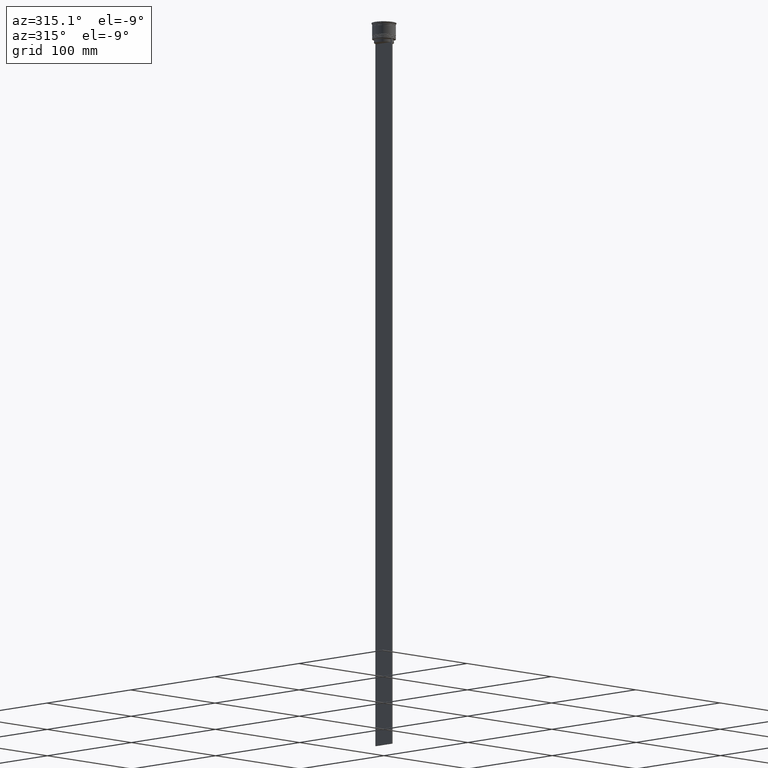
[diagram: clean part render]
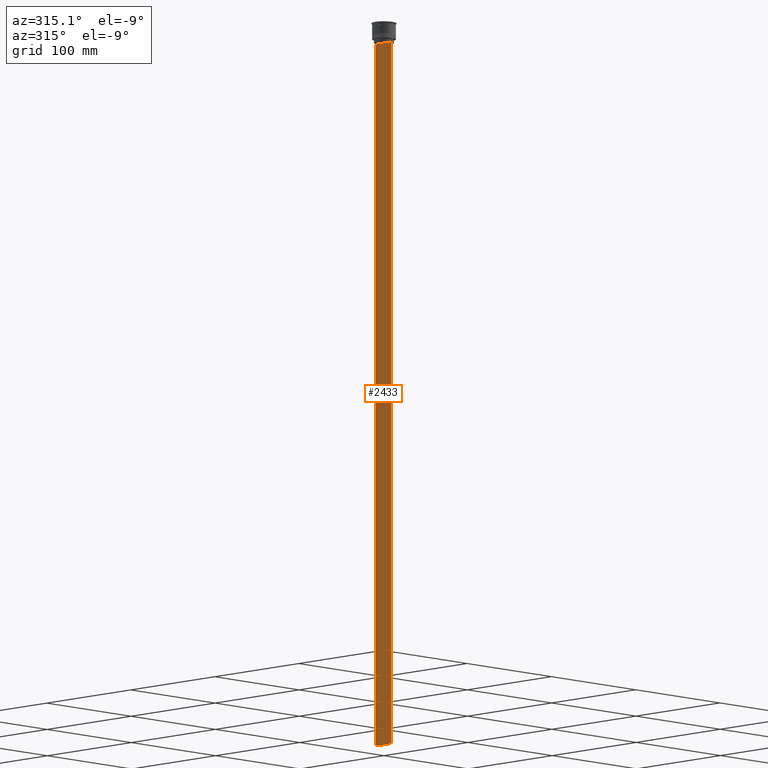
[diagram: same view with one face highlighted and labeled with its STEP entity id]
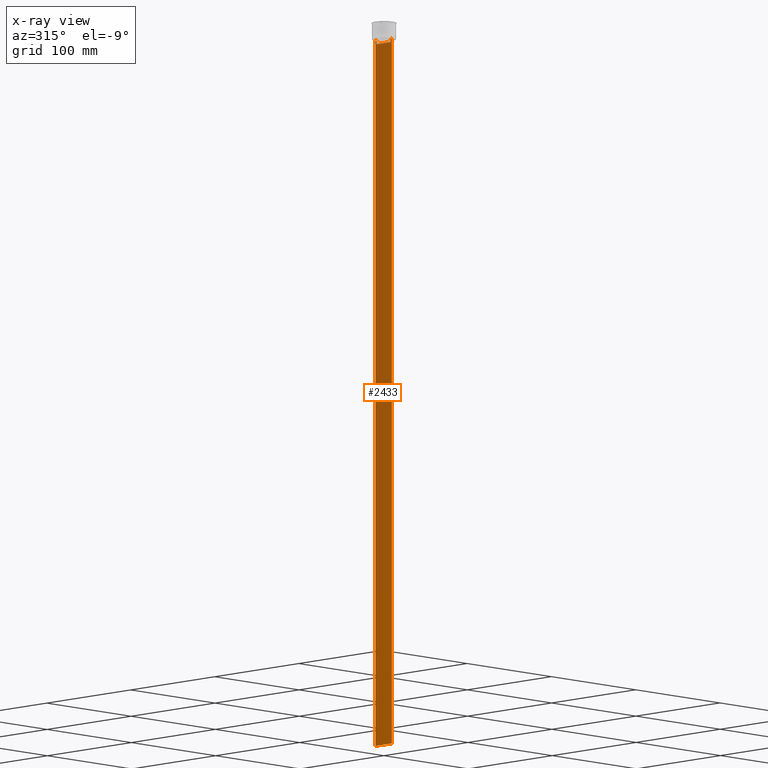
[diagram: x-ray of the same camera — body ghosted, the highlighted face saturated]
A machine part, auxiliary view. The second image highlights one B-rep face of the part: STEP entity #2433.
The next image is the same camera in x-ray: the body ghosted, the highlighted face saturated — about 0% of this face is hidden behind the body in this view.
In plain terms, the highlighted planar face has unit normal (-1, 0, 0).
Its self-contained STEP definition (entity closure, byte-faithful):
#21 = VERTEX_POINT ( 'NONE', #82 ) ;
#44 = EDGE_CURVE ( 'NONE', #1457, #1704, #2473, .T. ) ;
#74 = EDGE_CURVE ( 'NONE', #1005, #881, #1272, .T. ) ;
#82 = CARTESIAN_POINT ( 'NONE',  ( -0.5000000000000001110, -9.749999999999998224, -614.0000000000000000 ) ) ;
#126 = CARTESIAN_POINT ( 'NONE',  ( -0.5000000000000001110, 8.885943956609230199, -14.00000000000000178 ) ) ;
#156 = PLANE ( 'NONE',  #2300 ) ;
#179 = CARTESIAN_POINT ( 'NONE',  ( -0.5000000000000001110, -8.552060194457773434, -14.33334167772667023 ) ) ;
#190 = LINE ( 'NONE', #1823, #426 ) ;
#227 = DIRECTION ( 'NONE',  ( 0.000000000000000000, -1.000000000000000000, 0.000000000000000000 ) ) ;
#266 = DIRECTION ( 'NONE',  ( -0.000000000000000000, -0.000000000000000000, 1.000000000000000000 ) ) ;
#284 = CARTESIAN_POINT ( 'NONE',  ( -0.5000000000000001110, -9.749999999999998224, -14.00000000000000178 ) ) ;
#349 = B_SPLINE_CURVE_WITH_KNOTS ( 'NONE', 3,
 ( #1227, #179, #2377, #1414 ),
 .UNSPECIFIED., .F., .F.,
 ( 4, 4 ),
 ( 0.03898465126933130243, 0.03969388910599658260 ),
 .UNSPECIFIED. ) ;
#369 = ORIENTED_EDGE ( 'NONE', *, *, #1604, .F. ) ;
#423 = EDGE_CURVE ( 'NONE', #21, #989, #644, .T. ) ;
#426 = VECTOR ( 'NONE', #2171, 1000.000000000000000 ) ;
#462 = DIRECTION ( 'NONE',  ( 0.000000000000000000, -1.000000000000000000, 0.000000000000000000 ) ) ;
#472 = LINE ( 'NONE', #2066, #2471 ) ;
#473 = VECTOR ( 'NONE', #554, 1000.000000000000000 ) ;
#485 = ORIENTED_EDGE ( 'NONE', *, *, #2526, .F. ) ;
#489 = CARTESIAN_POINT ( 'NONE',  ( -0.5000000000000001110, -8.385105843100616241, 0.000000000000000000 ) ) ;
#534 = ORIENTED_EDGE ( 'NONE', *, *, #1361, .T. ) ;
#542 = DIRECTION ( 'NONE',  ( -1.000000000000000000, 0.000000000000000000, 0.000000000000000000 ) ) ;
#554 = DIRECTION ( 'NONE',  ( 0.000000000000000000, 0.000000000000000000, -1.000000000000000000 ) ) ;
#558 = CARTESIAN_POINT ( 'NONE',  ( -0.5000000000000001110, 8.552060201981381837, -14.33334167021640226 ) ) ;
#587 = CARTESIAN_POINT ( 'NONE',  ( -0.5000000000000001110, -9.749999999999998224, 5.525624189766635830 ) ) ;
#644 = LINE ( 'NONE', #1648, #719 ) ;
#672 = VECTOR ( 'NONE', #266, 1000.000000000000000 ) ;
#719 = VECTOR ( 'NONE', #1243, 1000.000000000000000 ) ;
#725 = VECTOR ( 'NONE', #932, 1000.000000000000000 ) ;
#742 = VERTEX_POINT ( 'NONE', #1378 ) ;
#749 = CARTESIAN_POINT ( 'NONE',  ( -0.5000000000000001110, -8.885943956609230199, -14.00000000000000178 ) ) ;
#752 = CARTESIAN_POINT ( 'NONE',  ( -0.5000000000000001110, 8.885943956609230199, -14.00000000000000178 ) ) ;
#851 = ORIENTED_EDGE ( 'NONE', *, *, #423, .F. ) ;
#857 = ORIENTED_EDGE ( 'NONE', *, *, #44, .F. ) ;
#881 = VERTEX_POINT ( 'NONE', #1683 ) ;
#890 = VECTOR ( 'NONE', #2255, 1000.000000000000000 ) ;
#928 = ORIENTED_EDGE ( 'NONE', *, *, #2159, .F. ) ;
#932 = DIRECTION ( 'NONE',  ( 0.000000000000000000, 0.000000000000000000, -1.000000000000000000 ) ) ;
#940 = CARTESIAN_POINT ( 'NONE',  ( -0.5000000000000001110, 8.719005771582351016, -14.16667453442324742 ) ) ;
#989 = VERTEX_POINT ( 'NONE', #1754 ) ;
#1005 = VERTEX_POINT ( 'NONE', #2112 ) ;
#1013 = EDGE_CURVE ( 'NONE', #1085, #742, #1788, .T. ) ;
#1085 = VERTEX_POINT ( 'NONE', #752 ) ;
#1150 = LINE ( 'NONE', #1344, #725 ) ;
#1154 = EDGE_CURVE ( 'NONE', #881, #1457, #349, .T. ) ;
#1227 = CARTESIAN_POINT ( 'NONE',  ( -0.5000000000000001110, -8.385105843100616241, -14.50000000000000000 ) ) ;
#1241 = VERTEX_POINT ( 'NONE', #2276 ) ;
#1243 = DIRECTION ( 'NONE',  ( 0.000000000000000000, 1.000000000000000000, 0.000000000000000000 ) ) ;
#1267 = LINE ( 'NONE', #1419, #890 ) ;
#1272 = LINE ( 'NONE', #489, #672 ) ;
#1344 = CARTESIAN_POINT ( 'NONE',  ( -0.5000000000000001110, -9.749999999999998224, 5.525624189766635830 ) ) ;
#1361 = EDGE_CURVE ( 'NONE', #1241, #989, #2336, .T. ) ;
#1378 = CARTESIAN_POINT ( 'NONE',  ( -0.5000000000000001110, 8.385105843100616241, -14.50000000000000000 ) ) ;
#1414 = CARTESIAN_POINT ( 'NONE',  ( -0.5000000000000001110, -8.885943956609230199, -14.00000000000000178 ) ) ;
#1419 = CARTESIAN_POINT ( 'NONE',  ( -0.5000000000000001110, 8.385105843100616241, 0.000000000000000000 ) ) ;
#1441 = CARTESIAN_POINT ( 'NONE',  ( -0.5000000000000001110, -9.749999999999998224, -14.00000000000000178 ) ) ;
#1457 = VERTEX_POINT ( 'NONE', #749 ) ;
#1463 = VECTOR ( 'NONE', #462, 1000.000000000000000 ) ;
#1520 = CARTESIAN_POINT ( 'NONE',  ( -0.5000000000000001110, 9.750000000000001776, 5.525624189766635830 ) ) ;
#1566 = DIRECTION ( 'NONE',  ( 0.000000000000000000, 0.000000000000000000, 1.000000000000000000 ) ) ;
#1604 = EDGE_CURVE ( 'NONE', #1241, #1085, #190, .T. ) ;
#1648 = CARTESIAN_POINT ( 'NONE',  ( -0.5000000000000001110, -9.749999999999998224, -614.0000000000000000 ) ) ;
#1683 = CARTESIAN_POINT ( 'NONE',  ( -0.5000000000000001110, -8.385105843100616241, -14.50000000000000000 ) ) ;
#1704 = VERTEX_POINT ( 'NONE', #284 ) ;
#1754 = CARTESIAN_POINT ( 'NONE',  ( -0.5000000000000001110, 9.750000000000001776, -614.0000000000000000 ) ) ;
#1763 = EDGE_LOOP ( 'NONE', ( #1799, #369, #534, #851, #485, #857, #2136, #2005, #2206, #928 ) ) ;
#1788 = B_SPLINE_CURVE_WITH_KNOTS ( 'NONE', 3,
 ( #126, #940, #558, #2498 ),
 .UNSPECIFIED., .F., .F.,
 ( 4, 4 ),
 ( 0.01511546479386908018, 0.01582316445439079997 ),
 .UNSPECIFIED. ) ;
#1799 = ORIENTED_EDGE ( 'NONE', *, *, #1013, .F. ) ;
#1823 = CARTESIAN_POINT ( 'NONE',  ( -0.5000000000000001110, -9.749999999999998224, -14.00000000000000178 ) ) ;
#1831 = CARTESIAN_POINT ( 'NONE',  ( -0.5000000000000001110, 8.385105843100616241, -17.00000000000000000 ) ) ;
#2005 = ORIENTED_EDGE ( 'NONE', *, *, #74, .F. ) ;
#2066 = CARTESIAN_POINT ( 'NONE',  ( -0.5000000000000001110, 8.400000000000003908, -17.00000000000000000 ) ) ;
#2112 = CARTESIAN_POINT ( 'NONE',  ( -0.5000000000000001110, -8.385105843100616241, -17.00000000000000000 ) ) ;
#2114 = VERTEX_POINT ( 'NONE', #1831 ) ;
#2136 = ORIENTED_EDGE ( 'NONE', *, *, #1154, .F. ) ;
#2159 = EDGE_CURVE ( 'NONE', #742, #2114, #1267, .T. ) ;
#2171 = DIRECTION ( 'NONE',  ( 0.000000000000000000, -1.000000000000000000, 0.000000000000000000 ) ) ;
#2206 = ORIENTED_EDGE ( 'NONE', *, *, #2207, .F. ) ;
#2207 = EDGE_CURVE ( 'NONE', #2114, #1005, #472, .T. ) ;
#2255 = DIRECTION ( 'NONE',  ( 0.000000000000000000, 0.000000000000000000, -1.000000000000000000 ) ) ;
#2276 = CARTESIAN_POINT ( 'NONE',  ( -0.5000000000000001110, 9.749999999999998224, -14.00000000000000178 ) ) ;
#2300 = AXIS2_PLACEMENT_3D ( 'NONE', #587, #542, #1566 ) ;
#2336 = LINE ( 'NONE', #1520, #473 ) ;
#2358 = FACE_OUTER_BOUND ( 'NONE', #1763, .T. ) ;
#2377 = CARTESIAN_POINT ( 'NONE',  ( -0.5000000000000001110, -8.719005764482790966, -14.16667454151159689 ) ) ;
#2433 = ADVANCED_FACE ( 'NONE', ( #2358 ), #156, .T. ) ;
#2471 = VECTOR ( 'NONE', #227, 1000.000000000000000 ) ;
#2473 = LINE ( 'NONE', #1441, #1463 ) ;
#2498 = CARTESIAN_POINT ( 'NONE',  ( -0.5000000000000001110, 8.385105843100616241, -14.50000000000000000 ) ) ;
#2526 = EDGE_CURVE ( 'NONE', #1704, #21, #1150, .T. ) ;